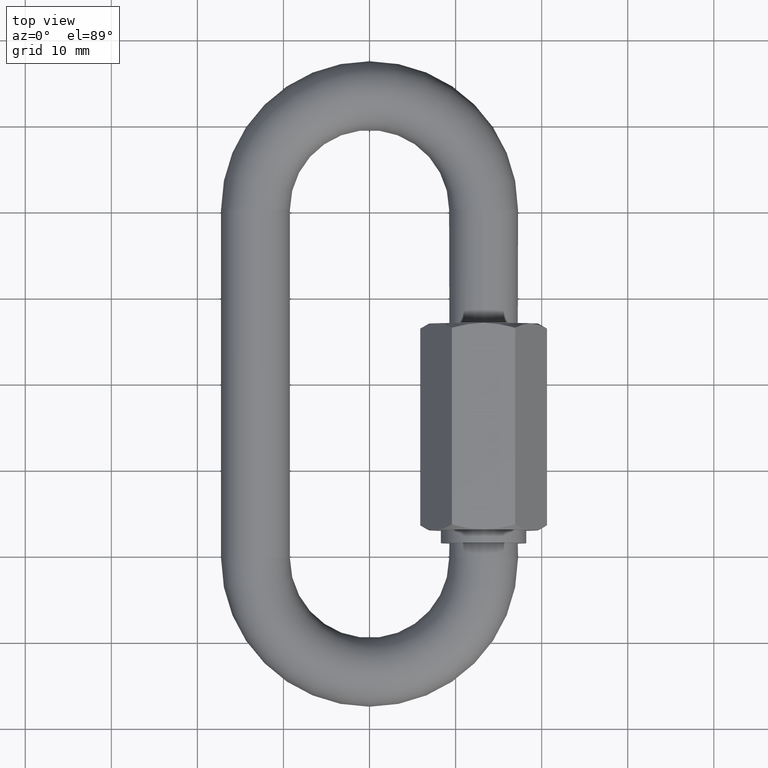
[diagram: clean part render]
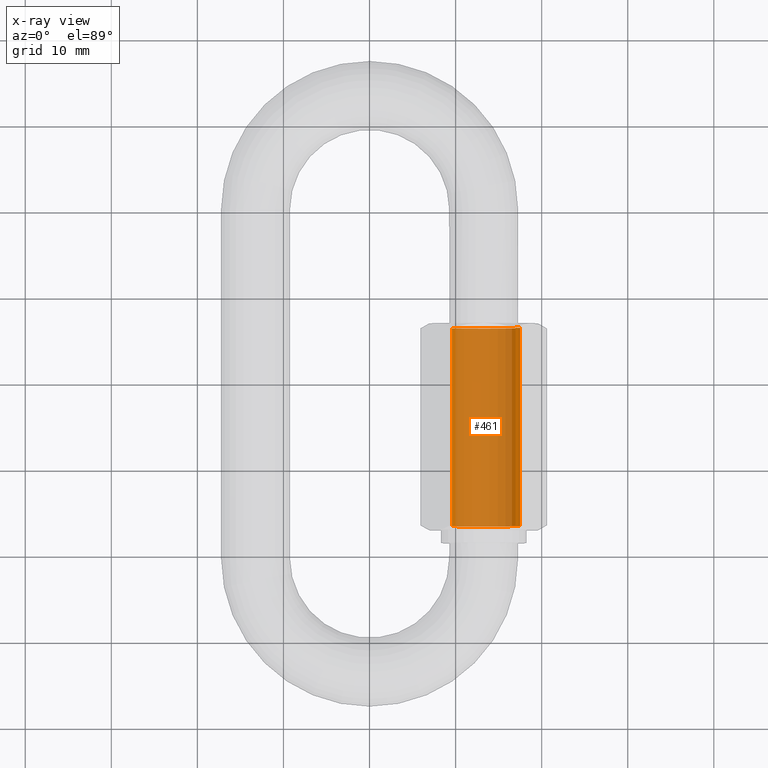
[diagram: x-ray — body ghosted, one internal face saturated and labeled with its STEP entity id]
A machine part, top view, then the same camera in x-ray: the body is ghosted and one INTERNAL B-rep face — a face not visible from any outside direction — is saturated and labeled: STEP entity #461.
In plain terms, the highlighted cylindrical surface (partial cylindrical patch) has radius 4.25 mm, axis along (0, 1, 0).
Its self-contained STEP definition (entity closure, byte-faithful):
#92 = DIRECTION ( 'NONE',  ( 0.0000000000000000000, 1.000000000000000000, 0.0000000000000000000 ) ) ;
#143 = CARTESIAN_POINT ( 'NONE',  ( 0.0000000000000000000, 11.49999999999999300, 4.249999999999994700 ) ) ;
#186 = AXIS2_PLACEMENT_3D ( 'NONE', #683, #703, #533 ) ;
#217 = EDGE_CURVE ( 'NONE', #1581, #246, #337, .T. ) ;
#246 = VERTEX_POINT ( 'NONE', #143 ) ;
#297 = CARTESIAN_POINT ( 'NONE',  ( 0.0000000000000000000, 12.00000000000000000, 4.249999999999994700 ) ) ;
#337 = LINE ( 'NONE', #297, #1427 ) ;
#389 = EDGE_CURVE ( 'NONE', #1974, #1681, #1215, .T. ) ;
#461 = ADVANCED_FACE ( 'NONE', ( #1431 ), #1066, .F. ) ;
#464 = CIRCLE ( 'NONE', #1051, 4.249999999999994700 ) ;
#533 = DIRECTION ( 'NONE',  ( 0.0000000000000000000, 0.0000000000000000000, 1.000000000000000000 ) ) ;
#566 = EDGE_LOOP ( 'NONE', ( #635, #751, #1417, #898 ) ) ;
#635 = ORIENTED_EDGE ( 'NONE', *, *, #1998, .T. ) ;
#675 = DIRECTION ( 'NONE',  ( 0.0000000000000000000, 0.0000000000000000000, 1.000000000000000000 ) ) ;
#683 = CARTESIAN_POINT ( 'NONE',  ( 0.0000000000000000000, -11.49999999999999600, 0.0000000000000000000 ) ) ;
#703 = DIRECTION ( 'NONE',  ( -0.0000000000000000000, -1.000000000000000000, -0.0000000000000000000 ) ) ;
#751 = ORIENTED_EDGE ( 'NONE', *, *, #389, .T. ) ;
#764 = AXIS2_PLACEMENT_3D ( 'NONE', #1947, #979, #675 ) ;
#838 = EDGE_CURVE ( 'NONE', #1681, #246, #464, .T. ) ;
#898 = ORIENTED_EDGE ( 'NONE', *, *, #217, .F. ) ;
#979 = DIRECTION ( 'NONE',  ( -0.0000000000000000000, 1.000000000000000000, -0.0000000000000000000 ) ) ;
#1022 = CARTESIAN_POINT ( 'NONE',  ( 0.0000000000000000000, 11.49999999999999300, 0.0000000000000000000 ) ) ;
#1051 = AXIS2_PLACEMENT_3D ( 'NONE', #1022, #92, #1957 ) ;
#1066 = CYLINDRICAL_SURFACE ( 'NONE', #764, 4.249999999999994700 ) ;
#1103 = CIRCLE ( 'NONE', #186, 4.249999999999994700 ) ;
#1161 = VECTOR ( 'NONE', #1895, 1000.000000000000000 ) ;
#1215 = LINE ( 'NONE', #1571, #1161 ) ;
#1351 = CARTESIAN_POINT ( 'NONE',  ( 0.0000000000000000000, -11.49999999999999600, 4.249999999999994700 ) ) ;
#1417 = ORIENTED_EDGE ( 'NONE', *, *, #838, .T. ) ;
#1427 = VECTOR ( 'NONE', #2004, 1000.000000000000000 ) ;
#1431 = FACE_OUTER_BOUND ( 'NONE', #566, .T. ) ;
#1571 = CARTESIAN_POINT ( 'NONE',  ( 5.204748896376245800E-016, 12.00000000000000000, -4.249999999999994700 ) ) ;
#1581 = VERTEX_POINT ( 'NONE', #1351 ) ;
#1681 = VERTEX_POINT ( 'NONE', #1863 ) ;
#1771 = CARTESIAN_POINT ( 'NONE',  ( 5.204748896376245800E-016, -11.49999999999999600, -4.249999999999994700 ) ) ;
#1863 = CARTESIAN_POINT ( 'NONE',  ( 5.204748896376245800E-016, 11.49999999999999300, -4.249999999999994700 ) ) ;
#1895 = DIRECTION ( 'NONE',  ( -0.0000000000000000000, 1.000000000000000000, -0.0000000000000000000 ) ) ;
#1947 = CARTESIAN_POINT ( 'NONE',  ( 0.0000000000000000000, 12.00000000000000000, 0.0000000000000000000 ) ) ;
#1957 = DIRECTION ( 'NONE',  ( 0.0000000000000000000, 0.0000000000000000000, 1.000000000000000000 ) ) ;
#1974 = VERTEX_POINT ( 'NONE', #1771 ) ;
#1998 = EDGE_CURVE ( 'NONE', #1581, #1974, #1103, .T. ) ;
#2004 = DIRECTION ( 'NONE',  ( -0.0000000000000000000, 1.000000000000000000, -0.0000000000000000000 ) ) ;